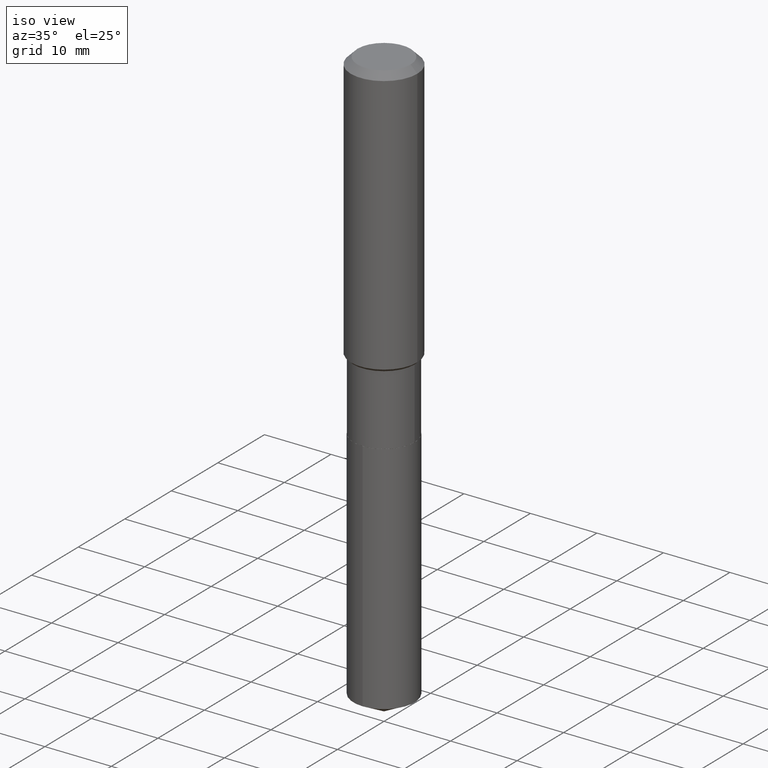
[diagram: clean part render]
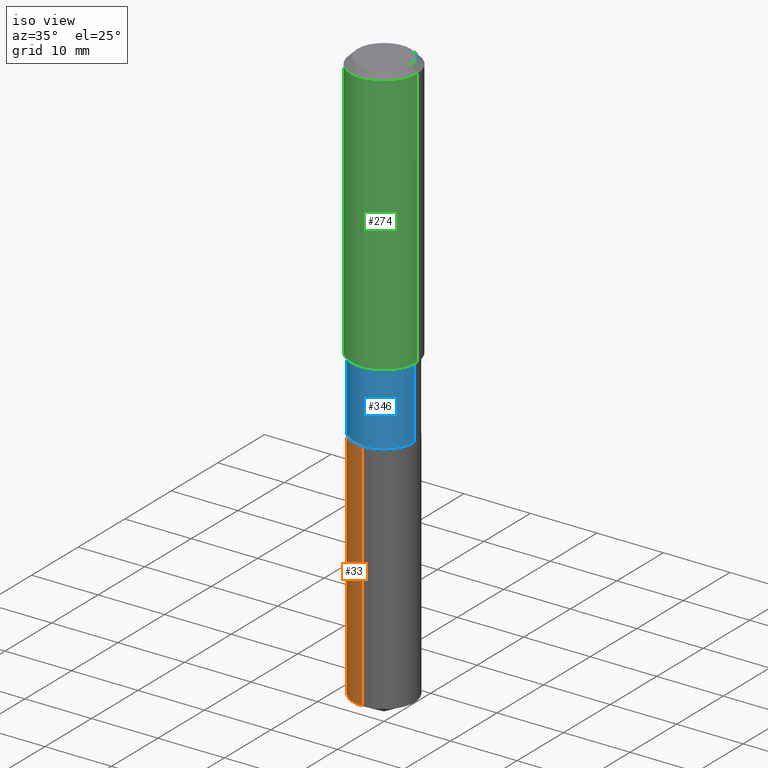
[diagram: same view with three faces highlighted in distinct colors, each labeled with its STEP entity id]
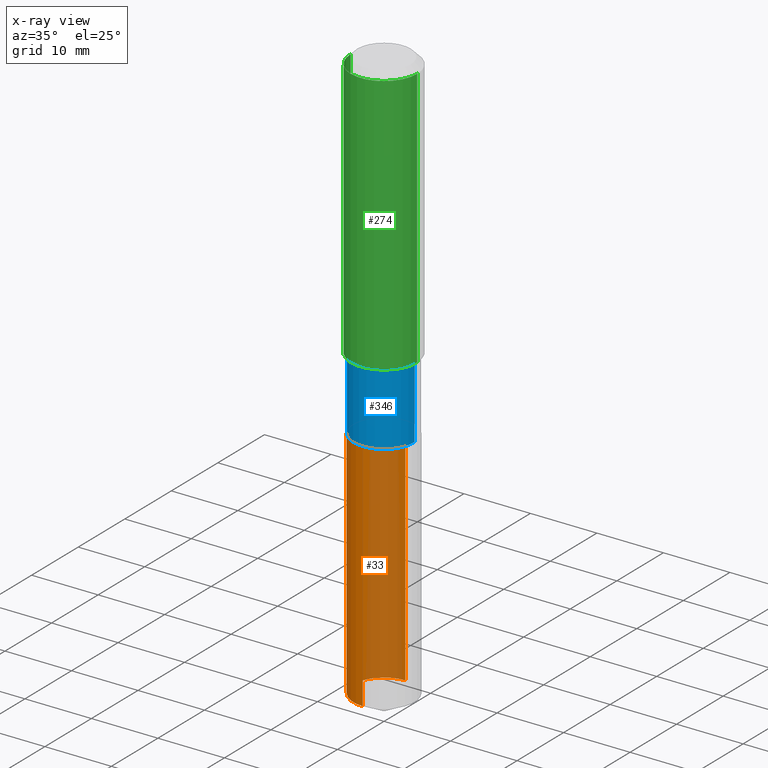
[diagram: x-ray of the same camera — body ghosted, the three highlighted faces saturated]
A machine part, iso view with three faces highlighted in distinct colors.
The next image is the same camera in x-ray (body ghosted, the three faces saturated) — at least one of them is partly hidden behind the body in this view.
Their STEP definitions:

[orange] entity #33 — the highlighted cylindrical surface (partial cylindrical patch) has radius 4.5999 mm, axis along (-0, 0, 1).
#10 = FACE_OUTER_BOUND ( 'NONE', #206, .T. ) ;
#29 = EDGE_CURVE ( 'NONE', #369, #291, #222, .T. ) ;
#31 = ORIENTED_EDGE ( 'NONE', *, *, #355, .T. ) ;
#33 = ADVANCED_FACE ( 'NONE', ( #10 ), #265, .T. ) ;
#37 = CARTESIAN_POINT ( 'NONE',  ( 1.286792894461624739E-15, 0.1810999999999929888, -2.015700000000000269 ) ) ;
#80 = VECTOR ( 'NONE', #226, 39.37007874015748143 ) ;
#99 = EDGE_CURVE ( 'NONE', #369, #238, #121, .T. ) ;
#106 = CARTESIAN_POINT ( 'NONE',  ( 8.333264976207015123E-29, -1.189750131459101143E-14, -3.407607421926106994 ) ) ;
#121 = CIRCLE ( 'NONE', #283, 0.1811000000000000110 ) ;
#159 = CARTESIAN_POINT ( 'NONE',  ( -1.264614540928933635E-15, -0.1811000000000070609, -2.015699999999999381 ) ) ;
#165 = CARTESIAN_POINT ( 'NONE',  ( -1.264614540928933635E-15, -0.1811000000000070609, -2.015699999999999381 ) ) ;
#178 = DIRECTION ( 'NONE',  ( -2.445517173023841322E-29, 3.491412074777250618E-15, 1.000000000000000000 ) ) ;
#181 = DIRECTION ( 'NONE',  ( -6.982962677686266711E-15, -1.000000000000000000, 3.016949744521549444E-15 ) ) ;
#187 = EDGE_CURVE ( 'NONE', #291, #285, #373, .T. ) ;
#206 = EDGE_LOOP ( 'NONE', ( #294, #432, #31, #333 ) ) ;
#222 = LINE ( 'NONE', #372, #289 ) ;
#224 = DIRECTION ( 'NONE',  ( -2.445517173023841322E-29, 3.491412074777250618E-15, 1.000000000000000000 ) ) ;
#226 = DIRECTION ( 'NONE',  ( -2.445517173023841322E-29, 3.491412074777250618E-15, 1.000000000000000000 ) ) ;
#236 = LINE ( 'NONE', #159, #80 ) ;
#238 = VERTEX_POINT ( 'NONE', #282 ) ;
#265 = CYLINDRICAL_SURFACE ( 'NONE', #433, 0.1811000000000000110 ) ;
#268 = CARTESIAN_POINT ( 'NONE',  ( 4.929331472627379200E-29, -7.037778934706127955E-15, -2.015699999999999825 ) ) ;
#282 = CARTESIAN_POINT ( 'NONE',  ( -1.264614540928899714E-15, -0.1811000000000118904, -3.407607421926106106 ) ) ;
#283 = AXIS2_PLACEMENT_3D ( 'NONE', #106, #305, #350 ) ;
#285 = VERTEX_POINT ( 'NONE', #165 ) ;
#289 = VECTOR ( 'NONE', #178, 39.37007874015748143 ) ;
#291 = VERTEX_POINT ( 'NONE', #37 ) ;
#294 = ORIENTED_EDGE ( 'NONE', *, *, #29, .F. ) ;
#296 = DIRECTION ( 'NONE',  ( -2.445517173023841322E-29, 3.491412074777250618E-15, 1.000000000000000000 ) ) ;
#302 = DIRECTION ( 'NONE',  ( -6.982962677686266711E-15, -1.000000000000000000, 3.016949744521549444E-15 ) ) ;
#305 = DIRECTION ( 'NONE',  ( -2.445517173023841322E-29, 3.491412074777250618E-15, 1.000000000000000000 ) ) ;
#333 = ORIENTED_EDGE ( 'NONE', *, *, #187, .F. ) ;
#350 = DIRECTION ( 'NONE',  ( -6.982962677686266711E-15, -1.000000000000000000, 3.016949744521549444E-15 ) ) ;
#355 = EDGE_CURVE ( 'NONE', #238, #285, #236, .T. ) ;
#369 = VERTEX_POINT ( 'NONE', #389 ) ;
#372 = CARTESIAN_POINT ( 'NONE',  ( 1.286792894461590621E-15, 0.1810999999999929888, -2.015700000000000269 ) ) ;
#373 = CIRCLE ( 'NONE', #463, 0.1811000000000000110 ) ;
#378 = CARTESIAN_POINT ( 'NONE',  ( 4.929331472627379200E-29, -7.037778934706127955E-15, -2.015699999999999825 ) ) ;
#389 = CARTESIAN_POINT ( 'NONE',  ( 1.286792894461624542E-15, 0.1810999999999881316, -3.407607421926107438 ) ) ;
#432 = ORIENTED_EDGE ( 'NONE', *, *, #99, .T. ) ;
#433 = AXIS2_PLACEMENT_3D ( 'NONE', #268, #296, #302 ) ;
#463 = AXIS2_PLACEMENT_3D ( 'NONE', #378, #224, #181 ) ;

[blue] entity #346 — the highlighted cylindrical surface (partial cylindrical patch) has radius 4.5999 mm, axis along (-0, 0, 1).
#17 = CARTESIAN_POINT ( 'NONE',  ( 3.910793714851269512E-29, -5.583576957077957107E-15, -1.599199999999999733 ) ) ;
#25 = VERTEX_POINT ( 'NONE', #64 ) ;
#42 = VECTOR ( 'NONE', #425, 39.37007874015748143 ) ;
#46 = LINE ( 'NONE', #270, #301 ) ;
#62 = EDGE_LOOP ( 'NONE', ( #131, #482, #127, #142 ) ) ;
#64 = CARTESIAN_POINT ( 'NONE',  ( -0.1810999999999999832, -5.023012181095790067E-15, -1.599199999999999733 ) ) ;
#71 = DIRECTION ( 'NONE',  ( -2.445468806185136597E-29, 3.491481338843145583E-15, 1.000000000000000000 ) ) ;
#95 = AXIS2_PLACEMENT_3D ( 'NONE', #386, #71, #116 ) ;
#116 = DIRECTION ( 'NONE',  ( 1.000000000000000000, -6.982962677686266711E-15, 4.876176775795935793E-29 ) ) ;
#117 = LINE ( 'NONE', #387, #42 ) ;
#127 = ORIENTED_EDGE ( 'NONE', *, *, #145, .T. ) ;
#131 = ORIENTED_EDGE ( 'NONE', *, *, #163, .F. ) ;
#142 = ORIENTED_EDGE ( 'NONE', *, *, #262, .F. ) ;
#145 = EDGE_CURVE ( 'NONE', #443, #219, #117, .T. ) ;
#148 = DIRECTION ( 'NONE',  ( -2.445468806185136877E-29, 3.491481338843145188E-15, 1.000000000000000000 ) ) ;
#152 = FACE_OUTER_BOUND ( 'NONE', #62, .T. ) ;
#163 = EDGE_CURVE ( 'NONE', #208, #25, #46, .T. ) ;
#194 = CYLINDRICAL_SURFACE ( 'NONE', #95, 0.1810999999999999832 ) ;
#199 = DIRECTION ( 'NONE',  ( -2.445468806185136597E-29, 3.491481338843145583E-15, 1.000000000000000000 ) ) ;
#208 = VERTEX_POINT ( 'NONE', #229 ) ;
#219 = VERTEX_POINT ( 'NONE', #392 ) ;
#229 = CARTESIAN_POINT ( 'NONE',  ( -0.1810999999999999832, -5.023012181095790067E-15, -2.015199999999999658 ) ) ;
#232 = CIRCLE ( 'NONE', #243, 0.1810999999999999832 ) ;
#240 = DIRECTION ( 'NONE',  ( 1.000000000000000000, -6.982962677686267499E-15, 0.000000000000000000 ) ) ;
#243 = AXIS2_PLACEMENT_3D ( 'NONE', #17, #199, #240 ) ;
#262 = EDGE_CURVE ( 'NONE', #25, #219, #232, .T. ) ;
#270 = CARTESIAN_POINT ( 'NONE',  ( -0.1810999999999999832, 1.286792894461541317E-15, -8.908191448451633036E-30 ) ) ;
#275 = CARTESIAN_POINT ( 'NONE',  ( 4.928108738224286960E-29, -7.036033194036706451E-15, -2.015199999999999658 ) ) ;
#301 = VECTOR ( 'NONE', #148, 39.37007874015748143 ) ;
#346 = ADVANCED_FACE ( 'NONE', ( #152 ), #194, .T. ) ;
#374 = CIRCLE ( 'NONE', #471, 0.1810999999999999832 ) ;
#386 = CARTESIAN_POINT ( 'NONE',  ( 0.000000000000000000, 0.000000000000000000, 0.000000000000000000 ) ) ;
#387 = CARTESIAN_POINT ( 'NONE',  ( 0.1810999999999999832, -1.264614540928982742E-15, 8.830756140966438813E-30 ) ) ;
#392 = CARTESIAN_POINT ( 'NONE',  ( 0.1810999999999999832, -6.848191498006940046E-15, -1.599199999999999733 ) ) ;
#416 = CARTESIAN_POINT ( 'NONE',  ( 0.1810999999999999832, -8.300647734965688602E-15, -2.015199999999999658 ) ) ;
#423 = DIRECTION ( 'NONE',  ( 1.000000000000000000, -6.982962677686267499E-15, 0.000000000000000000 ) ) ;
#425 = DIRECTION ( 'NONE',  ( -2.445468806185136877E-29, 3.491481338843145188E-15, 1.000000000000000000 ) ) ;
#443 = VERTEX_POINT ( 'NONE', #416 ) ;
#455 = DIRECTION ( 'NONE',  ( -2.445468806185136597E-29, 3.491481338843145583E-15, 1.000000000000000000 ) ) ;
#471 = AXIS2_PLACEMENT_3D ( 'NONE', #275, #455, #423 ) ;
#482 = ORIENTED_EDGE ( 'NONE', *, *, #490, .T. ) ;
#490 = EDGE_CURVE ( 'NONE', #208, #443, #374, .T. ) ;

[green] entity #274 — the highlighted cylindrical surface (partial cylindrical patch) has radius 5 mm, axis along (-0, 0, 1).
#4 = AXIS2_PLACEMENT_3D ( 'NONE', #91, #469, #244 ) ;
#8 = DIRECTION ( 'NONE',  ( 1.000000000000000000, -6.982962677686265922E-15, 0.000000000000000000 ) ) ;
#15 = ORIENTED_EDGE ( 'NONE', *, *, #239, .F. ) ;
#24 = ORIENTED_EDGE ( 'NONE', *, *, #86, .F. ) ;
#50 = LINE ( 'NONE', #430, #327 ) ;
#58 = VERTEX_POINT ( 'NONE', #450 ) ;
#72 = DIRECTION ( 'NONE',  ( -2.445468806185136597E-29, 3.491481338843145583E-15, 1.000000000000000000 ) ) ;
#74 = DIRECTION ( 'NONE',  ( -2.445468806185136877E-29, 3.491481338843145188E-15, 1.000000000000000000 ) ) ;
#82 = DIRECTION ( 'NONE',  ( 1.000000000000000000, -6.982962677686265922E-15, 0.000000000000000000 ) ) ;
#86 = EDGE_CURVE ( 'NONE', #93, #88, #344, .T. ) ;
#88 = VERTEX_POINT ( 'NONE', #345 ) ;
#91 = CARTESIAN_POINT ( 'NONE',  ( 0.000000000000000000, 0.000000000000000000, 0.000000000000000000 ) ) ;
#93 = VERTEX_POINT ( 'NONE', #197 ) ;
#98 = VERTEX_POINT ( 'NONE', #375 ) ;
#128 = CARTESIAN_POINT ( 'NONE',  ( 3.872277581153853552E-29, -5.528586125991177772E-15, -1.583449999999999580 ) ) ;
#156 = FACE_OUTER_BOUND ( 'NONE', #255, .T. ) ;
#161 = CYLINDRICAL_SURFACE ( 'NONE', #4, 0.1968500000000001082 ) ;
#170 = ORIENTED_EDGE ( 'NONE', *, *, #486, .T. ) ;
#195 = CARTESIAN_POINT ( 'NONE',  ( 9.627810689950954155E-31, -1.374596203102556547E-16, -0.03937000000000029365 ) ) ;
#197 = CARTESIAN_POINT ( 'NONE',  ( -0.1968500000000000250, -1.434319497806958297E-15, -0.03937000000000029365 ) ) ;
#239 = EDGE_CURVE ( 'NONE', #58, #93, #50, .T. ) ;
#244 = DIRECTION ( 'NONE',  ( 1.000000000000000000, -6.982962677686266711E-15, 4.876176775795935793E-29 ) ) ;
#252 = ORIENTED_EDGE ( 'NONE', *, *, #434, .T. ) ;
#255 = EDGE_LOOP ( 'NONE', ( #15, #170, #252, #24 ) ) ;
#274 = ADVANCED_FACE ( 'NONE', ( #156 ), #161, .T. ) ;
#310 = LINE ( 'NONE', #464, #368 ) ;
#327 = VECTOR ( 'NONE', #396, 39.37007874015748143 ) ;
#344 = CIRCLE ( 'NONE', #398, 0.1968500000000000250 ) ;
#345 = CARTESIAN_POINT ( 'NONE',  ( 0.1968500000000000250, -1.512055823412797189E-15, -0.03937000000000029365 ) ) ;
#354 = AXIS2_PLACEMENT_3D ( 'NONE', #128, #395, #8 ) ;
#368 = VECTOR ( 'NONE', #74, 39.37007874015748143 ) ;
#375 = CARTESIAN_POINT ( 'NONE',  ( 0.1968500000000002192, -6.903182329093720169E-15, -1.583449999999999580 ) ) ;
#395 = DIRECTION ( 'NONE',  ( -2.445468806185136597E-29, 3.491481338843145583E-15, 1.000000000000000000 ) ) ;
#396 = DIRECTION ( 'NONE',  ( -2.445468806185136877E-29, 3.491481338843145188E-15, 1.000000000000000000 ) ) ;
#398 = AXIS2_PLACEMENT_3D ( 'NONE', #195, #72, #82 ) ;
#430 = CARTESIAN_POINT ( 'NONE',  ( -0.1968500000000001082, 1.398703375343757985E-15, -9.682923725166787881E-30 ) ) ;
#434 = EDGE_CURVE ( 'NONE', #98, #88, #310, .T. ) ;
#436 = CIRCLE ( 'NONE', #354, 0.1968500000000002192 ) ;
#450 = CARTESIAN_POINT ( 'NONE',  ( -0.1968500000000002192, -4.129882750647417618E-15, -1.583449999999999580 ) ) ;
#464 = CARTESIAN_POINT ( 'NONE',  ( 0.1968500000000001082, -1.374596203102542397E-15, 9.598753983154305062E-30 ) ) ;
#469 = DIRECTION ( 'NONE',  ( -2.445468806185136597E-29, 3.491481338843145583E-15, 1.000000000000000000 ) ) ;
#486 = EDGE_CURVE ( 'NONE', #58, #98, #436, .T. ) ;